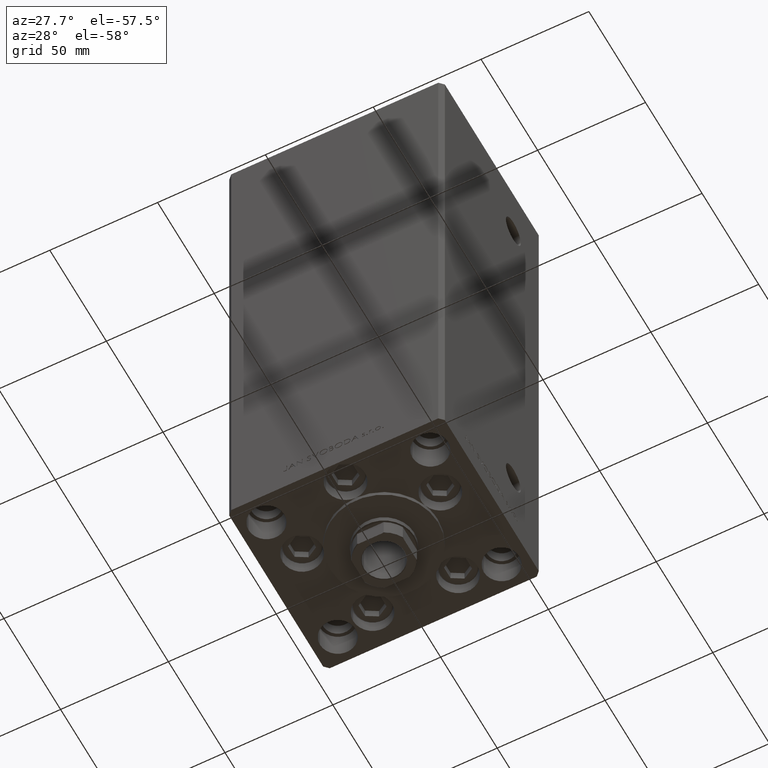
[diagram: clean part render]
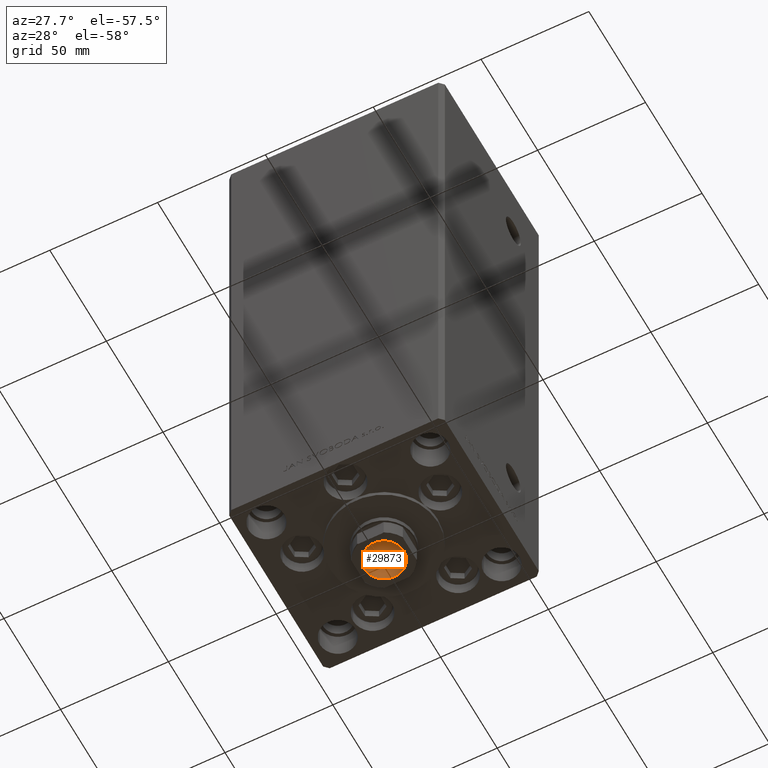
[diagram: same view with one face highlighted and labeled with its STEP entity id]
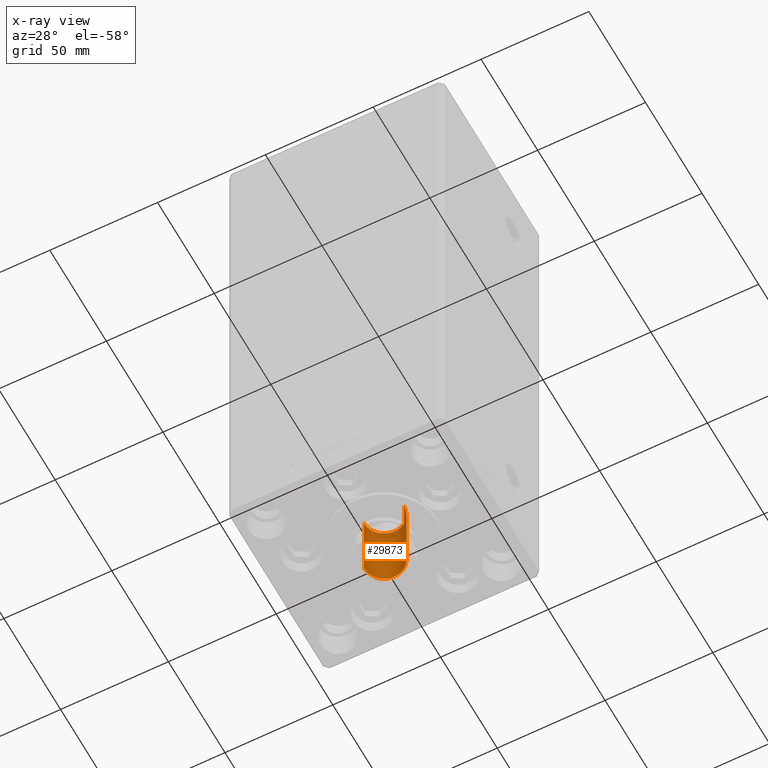
[diagram: x-ray of the same camera — body ghosted, the highlighted face saturated]
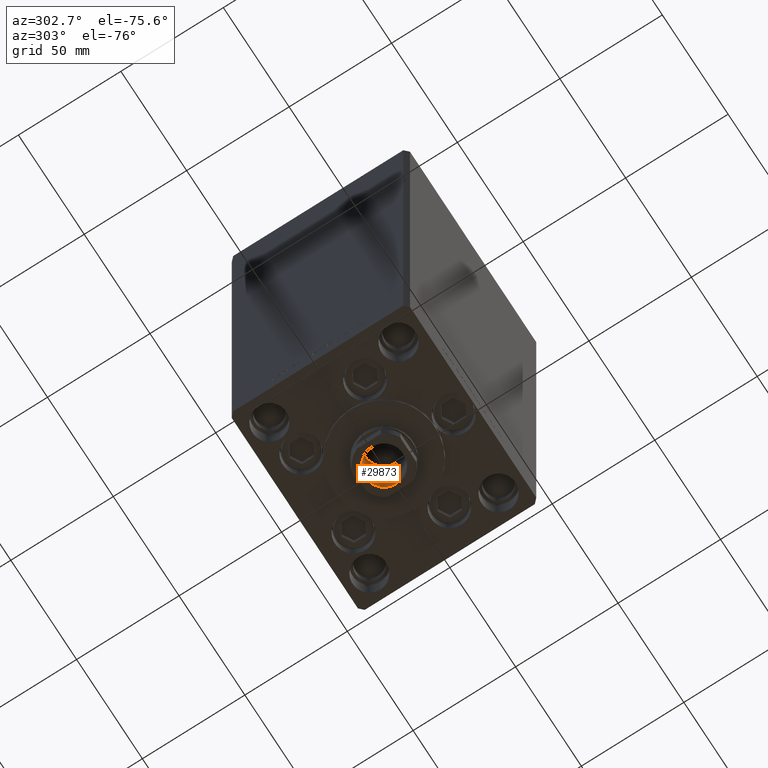
[diagram: same view with one face highlighted and labeled with its STEP entity id]
A machine part, auxiliary view. The second image highlights one B-rep face of the part: STEP entity #29873.
The next image is the same camera in x-ray: the body ghosted, the highlighted face saturated — about 7% of this face is hidden behind the body in this view.
A second angle (auxiliary view) of the same face is appended — the face is thin or edge-on in the first view.
In plain terms, the highlighted cylindrical surface (edge-blend (fillet) strip) has radius 9.25 mm, axis along (0, 0, -1).
Its self-contained STEP definition (entity closure, byte-faithful):
#152 = DIRECTION ( 'NONE',  ( -0.000000000000000000, -0.000000000000000000, 1.000000000000000000 ) ) ;
#1468 = VECTOR ( 'NONE', #43620, 1000.000000000000000 ) ;
#4673 = AXIS2_PLACEMENT_3D ( 'NONE', #14946, #18461, #17974 ) ;
#5967 = CARTESIAN_POINT ( 'NONE',  ( -9.249999999999994671, 1.132798289211300909E-15, 200.2500000000000000 ) ) ;
#6259 = LINE ( 'NONE', #21092, #1468 ) ;
#6849 = CARTESIAN_POINT ( 'NONE',  ( -9.249999999999996447, 1.132798289211301304E-15, 235.2500000000000284 ) ) ;
#7021 = ORIENTED_EDGE ( 'NONE', *, *, #15275, .T. ) ;
#8019 = VERTEX_POINT ( 'NONE', #5967 ) ;
#8533 = VERTEX_POINT ( 'NONE', #35793 ) ;
#11552 = AXIS2_PLACEMENT_3D ( 'NONE', #28527, #20519, #20766 ) ;
#11605 = ORIENTED_EDGE ( 'NONE', *, *, #24539, .F. ) ;
#13665 = LINE ( 'NONE', #6849, #46237 ) ;
#14946 = CARTESIAN_POINT ( 'NONE',  ( 0.000000000000000000, 0.000000000000000000, 235.2500000000000284 ) ) ;
#15275 = EDGE_CURVE ( 'NONE', #45659, #26099, #15572, .T. ) ;
#15572 = CIRCLE ( 'NONE', #11552, 9.249999999999996447 ) ;
#17974 = DIRECTION ( 'NONE',  ( 1.000000000000000000, 0.000000000000000000, 0.000000000000000000 ) ) ;
#18461 = DIRECTION ( 'NONE',  ( -0.000000000000000000, -0.000000000000000000, 1.000000000000000000 ) ) ;
#18507 = AXIS2_PLACEMENT_3D ( 'NONE', #38251, #152, #42261 ) ;
#19031 = EDGE_LOOP ( 'NONE', ( #11605, #23654, #42365, #7021 ) ) ;
#20519 = DIRECTION ( 'NONE',  ( 0.000000000000000000, 0.000000000000000000, 1.000000000000000000 ) ) ;
#20766 = DIRECTION ( 'NONE',  ( 1.000000000000000000, 0.000000000000000000, 0.000000000000000000 ) ) ;
#21092 = CARTESIAN_POINT ( 'NONE',  ( 9.249999999999996447, 0.000000000000000000, 235.2500000000000284 ) ) ;
#22860 = CARTESIAN_POINT ( 'NONE',  ( 9.249999999999996447, 0.000000000000000000, 234.9499999999999886 ) ) ;
#23654 = ORIENTED_EDGE ( 'NONE', *, *, #36406, .F. ) ;
#24539 = EDGE_CURVE ( 'NONE', #8019, #26099, #13665, .T. ) ;
#26099 = VERTEX_POINT ( 'NONE', #27769 ) ;
#27769 = CARTESIAN_POINT ( 'NONE',  ( -9.249999999999996447, 1.132798289211301304E-15, 234.9499999999999886 ) ) ;
#28527 = CARTESIAN_POINT ( 'NONE',  ( 0.000000000000000000, 0.000000000000000000, 234.9499999999999886 ) ) ;
#29873 = ADVANCED_FACE ( 'NONE', ( #45758 ), #41241, .F. ) ;
#30541 = EDGE_CURVE ( 'NONE', #8533, #45659, #6259, .T. ) ;
#35793 = CARTESIAN_POINT ( 'NONE',  ( 9.249999999999994671, 0.000000000000000000, 200.2500000000000000 ) ) ;
#36406 = EDGE_CURVE ( 'NONE', #8533, #8019, #37683, .T. ) ;
#37683 = CIRCLE ( 'NONE', #18507, 9.249999999999994671 ) ;
#38251 = CARTESIAN_POINT ( 'NONE',  ( 0.000000000000000000, 0.000000000000000000, 200.2500000000000000 ) ) ;
#40462 = DIRECTION ( 'NONE',  ( -0.000000000000000000, -0.000000000000000000, 1.000000000000000000 ) ) ;
#41241 = CYLINDRICAL_SURFACE ( 'NONE', #4673, 9.249999999999996447 ) ;
#42261 = DIRECTION ( 'NONE',  ( 1.000000000000000000, 0.000000000000000000, 0.000000000000000000 ) ) ;
#42365 = ORIENTED_EDGE ( 'NONE', *, *, #30541, .T. ) ;
#43620 = DIRECTION ( 'NONE',  ( -0.000000000000000000, -0.000000000000000000, 1.000000000000000000 ) ) ;
#45659 = VERTEX_POINT ( 'NONE', #22860 ) ;
#45758 = FACE_OUTER_BOUND ( 'NONE', #19031, .T. ) ;
#46237 = VECTOR ( 'NONE', #40462, 1000.000000000000000 ) ;